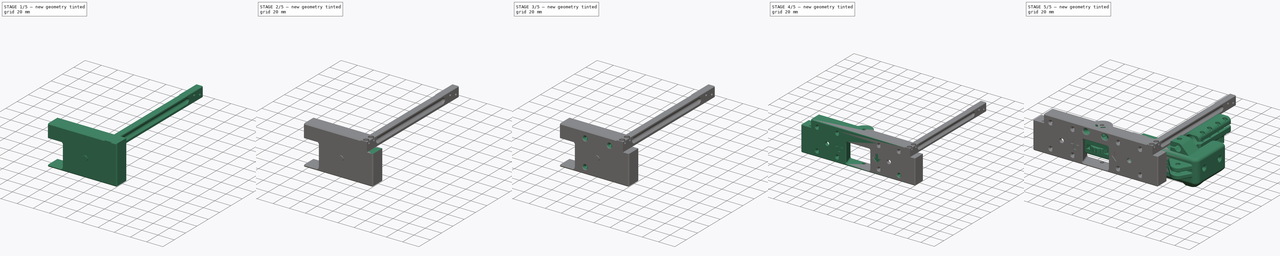
[diagram: build sequence overview — one tinted view per stage of 5, left to right]
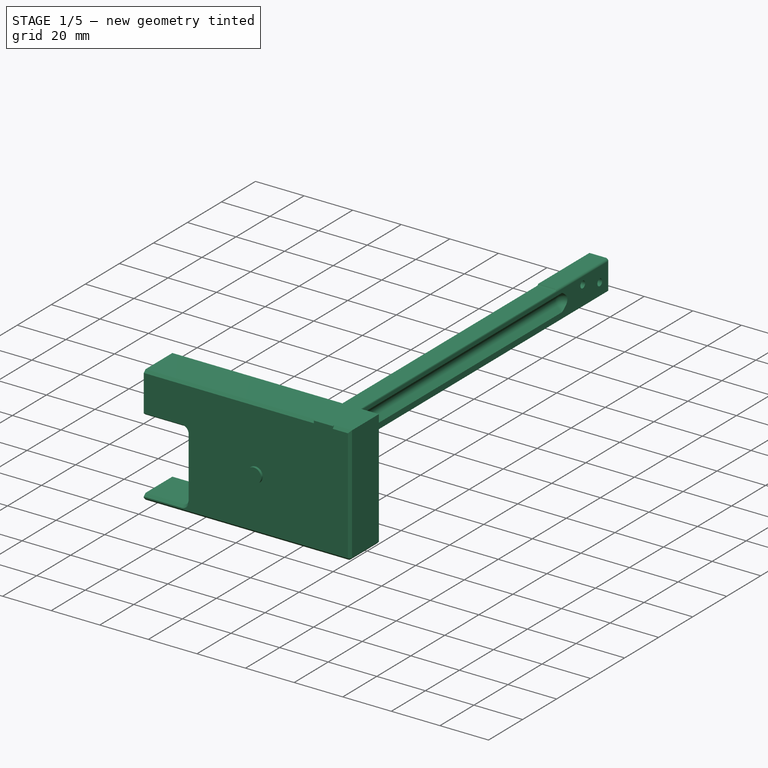
[diagram: stage 1 of 5 — iso view after this stage's code; geometry added in this stage tinted green]
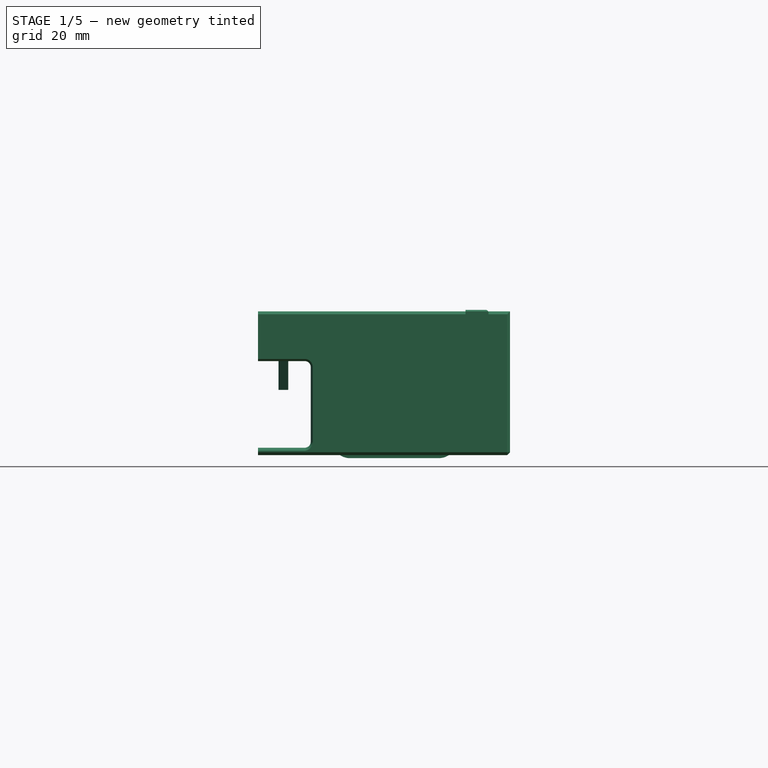
[diagram: stage 1 of 5 — front view after this stage's code; geometry added in this stage tinted green]
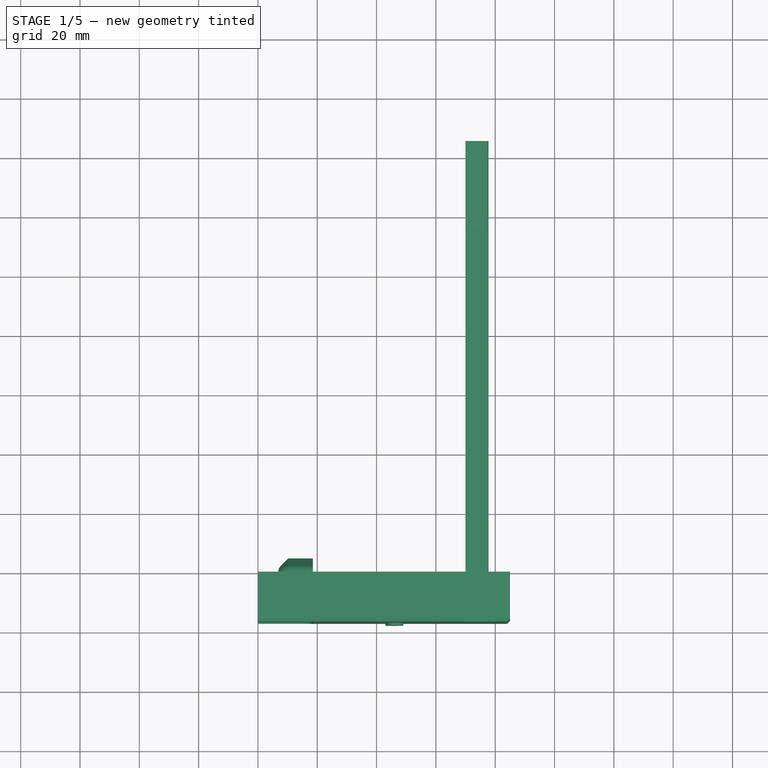
[diagram: stage 1 of 5 — top view after this stage's code; geometry added in this stage tinted green]
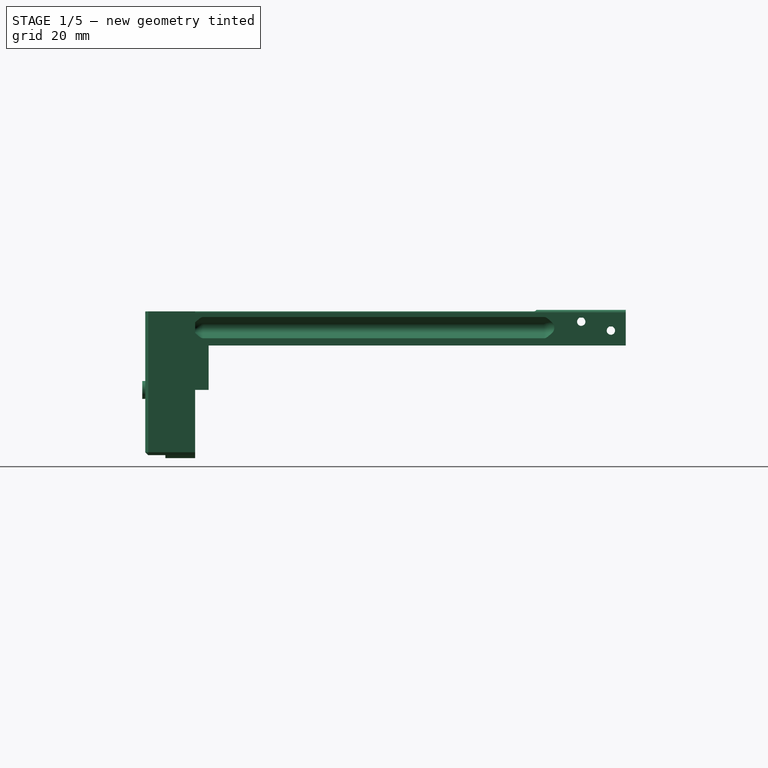
[diagram: stage 1 of 5 — right view after this stage's code; geometry added in this stage tinted green]
FCSTD DOCUMENT  (FreeCAD 0.16RUnknown)
Label: FrontCrane
License: All rights reserved
LicenseURL: http://en.wikipedia.org/wiki/All_rights_reserved
objects: Part::FeaturePython×35, Part::Cut×23, Sketcher::SketchObject×17, PartDesign::Pad×10, App::DocumentObjectGroup×6, Part::Fillet×4, Part::Chamfer×3, PartDesign::Pocket×3, PartDesign::Revolution×2, Part::Mirroring×2, Part::MultiFuse×2, Spreadsheet::Sheet×1, Part::Feature×1, PartDesign::Draft×1, Part::Sweep×1, Part::MultiCommon×1, Part::Cylinder×1, PartDesign::PolarPattern×1
note: 122 computed .brp shape members not serialized (recipe doc carries the construction recipe); baked Part::Feature solids carry a one-line shape summary decoded from their .brp

FEATURE [Sketcher::SketchObject] Sketch  label="Base"
  Placement = pos=(0,-0.2,0) rot=(1,0,0;1.5708rad)
  expr: Placement.Base.y = -pars.FrontClear
  sketch-geometry (4):
    g0: LineSegment StartX=0 StartY=26.5 StartZ=0 EndX=85 EndY=26.5 EndZ=0
    g1: LineSegment StartX=85 StartY=26.5 StartZ=0 EndX=85 EndY=-22 EndZ=0
    g2: LineSegment StartX=85 StartY=-22 StartZ=0 EndX=0 EndY=-22 EndZ=0
    g3: LineSegment StartX=0 StartY=-22 StartZ=0 EndX=0 EndY=26.5 EndZ=0
  constraints (12):
    c: Coincident(g0,g1)
    c: Coincident(g1,g2)
    c: Coincident(g2,g3)
    c: Coincident(g3,g0)
    c: Horizontal(g0)
    c: Horizontal(g2)
    c: Vertical(g1)
    c: Vertical(g3)
    c: PointOnObject(g0,g-2)
    c: DistanceY(g0) = 26.5
    c: DistanceY(g2) = -22
    c: DistanceX(g0) = 85
FEATURE [PartDesign::Pad] Pad  label="Base001"
  Length = 16.8
  Length2 = 100
  Placement = pos=(0,-0.2,0) rot=(1,0,0;1.5708rad)
  Sketch = -> Sketch
  Type = 0
  expr: Length = 17 - pars.FrontClear
FEATURE [Sketcher::SketchObject] Sketch001  label="CenterSlot"
  Placement = pos=(0,0,0) rot=(0.57735,0.57735,0.57735;2.0944rad)
  expr: Constraints[11] = Base001.Length + 10mm
  sketch-geometry (4):
    g0: LineSegment StartX=0 StartY=14 StartZ=0 EndX=-26.8 EndY=6.81896 EndZ=0
    g1: LineSegment StartX=-26.8 StartY=6.81896 StartZ=0 EndX=-26.8 EndY=-19.5 EndZ=0
    g2: LineSegment StartX=-26.8 StartY=-19.5 StartZ=0 EndX=0 EndY=-19.5 EndZ=0
    g3: LineSegment StartX=0 StartY=-19.5 StartZ=0 EndX=0 EndY=14 EndZ=0
  constraints (12):
    c: Coincident(g0,g1)
    c: Coincident(g1,g2)
    c: Coincident(g2,g3)
    c: Coincident(g0,g3)
    c: PointOnObject(g0,g-2)
    c: Horizontal(g2)
    c: Vertical(g3)
    c: Vertical(g1)
    c: DistanceY(g2) = -19.5
    c: DistanceY(g0) = 14
    c: Angle(g0) = -2.87979
    c: DistanceX(g2,g2) = 26.8
FEATURE [PartDesign::Pad] Pad001  label="CenterSlot001"
  Length = 23
  Length2 = 100
  Placement = pos=(0,0,0) rot=(0.57735,0.57735,0.57735;2.0944rad)
  Sketch = -> Sketch001
  Type = 0
FEATURE [PartDesign::Draft] Draft  label="CenterSlotDraft"
  Angle = 18
  Base = -> Pad001 [Face6]
  NeutralPlane = -> Pad001 [Face4]
  Placement = pos=(0,0,0) rot=(0.57735,0.57735,0.57735;2.0944rad)
FEATURE [Part::Fillet] Fillet  label="CSDFillet"
  Base = -> Draft
  Edges = 2 edges r=2: [Edge4,Edge10]
FEATURE [Part::Cut] Cut  label="CenterSlotCut"
  Base = -> Pad
  Tool = -> Fillet
FEATURE [Part::Chamfer] Chamfer  label="CenterSlotChamfer"
  Base = -> Cut
  Edges = 1 edges r=1: [Edge22]
FEATURE [Sketcher::SketchObject] Sketch011  label="RailSection"
  expr: Constraints[6] = pars.BallShapeTol + 3
  sketch-geometry (4):
    g0: Circle [constr] CenterX=10 CenterY=-2.5e-11 CenterZ=0 NormalX=0 NormalY=0 NormalZ=1 Radius=2.946
    g1: LineSegment StartX=10.2 StartY=4.36627 StartZ=0 EndX=5.83373 EndY=0 EndZ=0
    g2: LineSegment StartX=5.83373 StartY=0 StartZ=0 EndX=10.2 EndY=-4.36627 EndZ=0
    g3: LineSegment StartX=10.2 StartY=-4.36627 StartZ=0 EndX=10.2 EndY=4.36627 EndZ=0
  constraints (12):
    c: Coincident(g1,g2)
    c: Coincident(g2,g3)
    c: Coincident(g1,g3)
    c: Vertical(g3)
    c: Perpendicular(g2,g1)
    c: Angle(g1) = -2.35619
    c: Radius(g0) = 2.946
    c: Tangent(g1,g0)
    c: Tangent(g0,g2)
    c: DistanceX(g0) = 10
    c: DistanceX(g1) = 10.2
    c: PointOnObject(g1,g-1)
FEATURE [Sketcher::SketchObject] Sketch002  label="RailPath"
  Placement = pos=(0,0,0) rot=(1,0,0;1.5708rad)
  expr: Constraints[9] = pars.RailLen / 2
  sketch-geometry (3):
    g0: LineSegment StartX=6.5 StartY=0 StartZ=0 EndX=6.5 EndY=19 EndZ=0
    g1: ArcOfCircle CenterX=10.5 CenterY=19 CenterZ=0 NormalX=0 NormalY=0 NormalZ=1 Radius=4 StartAngle=1.5708 EndAngle=3.14159
    g2: LineSegment StartX=10.5 StartY=23 StartZ=0 EndX=18.5 EndY=23 EndZ=0
  constraints (11):
    c: Coincident(g1,g0)
    c: Tangent(g1,g0)
    c: Vertical(g0)
    c: PointOnObject(g0,g-1)
    c: Horizontal(g2)
    c: Coincident(g2,g1)
    c: Tangent(g2,g1)
    c: DistanceX(g1) = 10.5
    c: DistanceX(g2,g2) = 8
    c: DistanceY(g0,g0) = 19
    c: Radius(g1) = 4
FEATURE [Part::Sweep] Sweep  label="RailSweep"
  Frenet = false
  Sections = -> [Sketch011]
  Solid = true
  Spine = -> Sketch002 [Edge1,Edge2,Edge3]
  Transition = 1
FEATURE [Part::Fillet] Fillet003  label="RailFillet"
  Base = -> Sweep
  Edges = 1 edges r=2.6: [Edge17]
FEATURE [Sketcher::SketchObject] Sketch014  label="GuideReinf"
  Placement = pos=(0,0,0) rot=(1,0,0;1.5708rad)
  expr: Constraints[75] = 2 * pars.GuideClear + 20
  sketch-geometry (26):
    g0: LineSegment StartX=0 StartY=7.07107 StartZ=0 EndX=-7.07107 EndY=0 EndZ=0
    g1: LineSegment StartX=-7.07107 StartY=0 StartZ=0 EndX=1.5e-11 EndY=-7.07107 EndZ=0
    g2: LineSegment StartX=1.5e-11 StartY=-7.07107 StartZ=0 EndX=7.07107 EndY=4e-12 EndZ=0
    g3: LineSegment StartX=7.07107 StartY=4e-12 StartZ=0 EndX=0 EndY=7.07107 EndZ=0
    g4: LineSegment StartX=0 StartY=12.0208 StartZ=0 EndX=-9.97918 EndY=22 EndZ=0
    g5: LineSegment StartX=-9.97918 StartY=22 StartZ=0 EndX=9.97918 EndY=22 EndZ=0
    g6: LineSegment StartX=9.97918 StartY=22 StartZ=0 EndX=0 EndY=12.0208 EndZ=0
    g7: LineSegment StartX=-10.4 StartY=17.4711 StartZ=0 EndX=-2.47487 EndY=9.54594 EndZ=0
    g8: LineSegment StartX=-2.47487 StartY=9.54594 StartZ=0 EndX=-10.4 EndY=1.62082 EndZ=0
    g9: LineSegment StartX=-10.4 StartY=1.62082 StartZ=0 EndX=-10.4 EndY=17.4711 EndZ=0
    g10: LineSegment StartX=10.4 StartY=17.4711 StartZ=0 EndX=2.47487 EndY=9.54594 EndZ=0
    g11: LineSegment StartX=2.47487 StartY=9.54594 StartZ=0 EndX=10.4 EndY=1.62082 EndZ=0
    g12: LineSegment StartX=10.4 StartY=1.62082 StartZ=0 EndX=10.4 EndY=17.4711 EndZ=0
    g13: LineSegment StartX=10.4 StartY=-1.62082 StartZ=0 EndX=2.47487 EndY=-9.54594 EndZ=0
    g14: LineSegment StartX=2.47487 StartY=-9.54594 StartZ=0 EndX=10.4 EndY=-17.4711 EndZ=0
    g15: LineSegment StartX=10.4 StartY=-17.4711 StartZ=0 EndX=10.4 EndY=-1.62082 EndZ=0
    g16: LineSegment StartX=-10.4 StartY=-1.62082 StartZ=0 EndX=-2.47487 EndY=-9.54594 EndZ=0
    g17: LineSegment StartX=-2.47487 StartY=-9.54594 StartZ=0 EndX=-10.4 EndY=-17.4711 EndZ=0
    g18: LineSegment StartX=-10.4 StartY=-17.4711 StartZ=0 EndX=-10.4 EndY=-1.62082 EndZ=0
    g19: LineSegment StartX=-9.97918 StartY=-22 StartZ=0 EndX=0 EndY=-12.0208 EndZ=0
    g20: LineSegment StartX=0 StartY=-12.0208 StartZ=0 EndX=9.97918 EndY=-22 EndZ=0
    g21: LineSegment StartX=9.97918 StartY=-22 StartZ=0 EndX=-9.97918 EndY=-22 EndZ=0
    g22: LineSegment [constr] StartX=-10.4 StartY=22 StartZ=0 EndX=10.4 EndY=22 EndZ=0
    g23: LineSegment [constr] StartX=10.4 StartY=22 StartZ=0 EndX=10.4 EndY=-22 EndZ=0
    g24: LineSegment [constr] StartX=10.4 StartY=-22 StartZ=0 EndX=-10.4 EndY=-22 EndZ=0
    g25: LineSegment [constr] StartX=-10.4 StartY=-22 StartZ=0 EndX=-10.4 EndY=22 EndZ=0
  constraints (79):
    c: Coincident(g0,g1)
    c: Coincident(g1,g2)
    c: Coincident(g2,g3)
    c: Coincident(g3,g0)
    c: Coincident(g4,g5)
    c: Coincident(g5,g6)
    c: Coincident(g7,g8)
    c: Coincident(g8,g9)
    c: Coincident(g10,g11)
    c: Coincident(g11,g12)
    c: Coincident(g12,g10)
    c: Coincident(g13,g14)
    c: Coincident(g14,g15)
    c: Coincident(g15,g13)
    c: Coincident(g16,g17)
    c: Coincident(g17,g18)
    c: Coincident(g18,g16)
    c: Coincident(g19,g20)
    c: Coincident(g20,g21)
    c: Coincident(g21,g19)
    c: Coincident(g4,g6)
    c: Coincident(g9,g7)
    c: Vertical(g9)
    c: Vertical(g12)
    c: Vertical(g18)
    c: Vertical(g15)
    c: Horizontal(g5)
    c: Horizontal(g21)
    c: Parallel(g8,g0)
    c: Parallel(g0,g2)
    c: Parallel(g2,g13)
    c: Parallel(g13,g19)
    c: Parallel(g19,g17)
    c: Parallel(g17,g10)
    c: Parallel(g10,g6)
    c: Parallel(g4,g7)
    c: Parallel(g7,g11)
    c: Parallel(g11,g3)
    c: Parallel(g3,g1)
    c: Parallel(g1,g16)
    c: Parallel(g16,g20)
    c: Parallel(g20,g14)
    c: Perpendicular(g6,g4)
    c: Angle(g10) = -2.35619
    c: PointOnObject(g7,g3)
    c: PointOnObject(g10,g0)
    c: PointOnObject(g13,g1)
    c: PointOnObject(g16,g2)
    c: PointOnObject(g19,g16)
    c: PointOnObject(g19,g13)
    c: Equal(g3,g2)
    c: PointOnObject(g7,g6)
    c: PointOnObject(g4,g11)
    c: PointOnObject(g8,g18)
    c: PointOnObject(g11,g15)
    c: Coincident(g22,g23)
    c: Coincident(g23,g24)
    c: Coincident(g24,g25)
    c: Coincident(g25,g22)
    c: Horizontal(g22)
    c: Horizontal(g24)
    c: Vertical(g23)
    c: Vertical(g25)
    c: PointOnObject(g4,g22)
    c: PointOnObject(g7,g25)
    c: PointOnObject(g19,g24)
    c: PointOnObject(g14,g23)
    c: PointOnObject(g4,g-2)
    c: PointOnObject(g0,g-2)
    c: PointOnObject(g19,g-2)
    c: PointOnObject(g0,g-1)
    c: Equal(g9,g12)
    c: Equal(g21,g5)
    c: Equal(g8,g11)
    c: Equal(g8,g16)
    c: DistanceX(g22,g22) = 20.8
    c: DistanceY(g25,g25) = 44
    c: Distance(g3) = 10
    c: Distance(g4,g10) = 3.5
FEATURE [PartDesign::Pad] Pad003  label="GuideReinf001"
  Length = 1
  Length2 = 100
  Placement = pos=(0,0,0) rot=(1,0,0;1.5708rad)
  Sketch = -> Sketch014
  Type = 0
FEATURE [Part::FeaturePython] Clone010  label="Clone of GuideReinf001"  # Draft clone (typed FeaturePython)
  Objects = -> [Pad003]
  Placement = pos=(46,-11.4,2) rot=(1,0,0;1.5708rad)
  Scale = (1,1,1)
  expr: Placement.Base.x = pars.GuideSep
  expr: Placement.Base.y = -1 * (pars.GuideClear + 11)
FEATURE [Part::Chamfer] Chamfer001  label="NiceFrontChamfer"
  Base = -> Chamfer
  Edges = 4 edges r=1: [Edge7,Edge9,Edge11,Edge30]
FEATURE [Sketcher::SketchObject] Sketch012  label="GuideSlot"
  Placement = pos=(0,-0.2,0) rot=(0,0.707107,0.707107;3.14159rad)
  Support = -> Chamfer001 [Face7]
  expr: Constraints[10] = -pars.GuideSep
  expr: Constraints[11] = 2 * pars.GuideClear + 20
  sketch-geometry (5):
    g0: LineSegment StartX=-56.4 StartY=24 StartZ=0 EndX=-35.6 EndY=24 EndZ=0
    g1: LineSegment StartX=-35.6 StartY=24 StartZ=0 EndX=-35.6 EndY=-30 EndZ=0
    g2: LineSegment StartX=-35.6 StartY=-30 StartZ=0 EndX=-56.4 EndY=-30 EndZ=0
    g3: LineSegment StartX=-56.4 StartY=-30 StartZ=0 EndX=-56.4 EndY=24 EndZ=0
    g4: GeomPoint [constr] X=-46 Y=24 Z=0
  constraints (13):
    c: Coincident(g0,g1)
    c: Coincident(g1,g2)
    c: Coincident(g2,g3)
    c: Coincident(g3,g0)
    c: Horizontal(g0)
    c: Horizontal(g2)
    c: Vertical(g1)
    c: Vertical(g3)
    c: Symmetric(g0,g0,g4)
    c: DistanceY(g4) = 24
    c: DistanceX(g4) = -46
    c: DistanceX(g2,g2) = 20.8
    c: DistanceY(g1) = -30
FEATURE [PartDesign::Pocket] Pocket  label="GuideSlot001"
  Length = 11.2
  Sketch = -> Sketch012
  Type = 0
  expr: Length = (11 + pars.GuideClear - pars.FrontClear) * 1mm
FEATURE [Part::Cut] Cut001  label="GuideReinfCut"
  Base = -> Pocket
  Tool = -> Clone010
FEATURE [Part::FeaturePython] refine001  label="refine_GuideReinfCut"  # WARN: FeaturePython — macro-defined, semantics opaque (R4)
  Base = -> Cut001
FEATURE [Sketcher::SketchObject] Sketch015  label="RailCuts"
  Placement = pos=(0,-0.2,0) rot=(1,0,0;1.5708rad)
  expr: Constraints[18] = 2 * pars.GBoltSep
  expr: Placement.Base.y = -pars.FrontClear
  expr: Constraints[17] = pars.GuideSep
  sketch-geometry (9):
    g0: LineSegment StartX=31 StartY=24 StartZ=0 EndX=61 EndY=24 EndZ=0
    g1: LineSegment StartX=67 StartY=18 StartZ=0 EndX=67 EndY=-17 EndZ=0
    g2: LineSegment StartX=61 StartY=-23 StartZ=0 EndX=31 EndY=-23 EndZ=0
    g3: LineSegment StartX=25 StartY=-17 StartZ=0 EndX=25 EndY=18 EndZ=0
    g4: ArcOfCircle CenterX=31 CenterY=18 CenterZ=0 NormalX=0 NormalY=0 NormalZ=1 Radius=6 StartAngle=1.5708 EndAngle=3.14159
    g5: ArcOfCircle CenterX=61 CenterY=18 CenterZ=0 NormalX=0 NormalY=0 NormalZ=1 Radius=6 StartAngle=0 EndAngle=1.5708
    g6: ArcOfCircle CenterX=61 CenterY=-17 CenterZ=0 NormalX=0 NormalY=0 NormalZ=1 Radius=6 StartAngle=4.71239 EndAngle=6.28319
    g7: ArcOfCircle CenterX=31 CenterY=-17 CenterZ=0 NormalX=0 NormalY=0 NormalZ=1 Radius=6 StartAngle=3.14159 EndAngle=4.71239
    g8: GeomPoint [constr] X=46 Y=24 Z=0
  constraints (21):
    c: Horizontal(g0)
    c: Horizontal(g2)
    c: Vertical(g1)
    c: Vertical(g3)
    c: Tangent(g3,g4) = 1.5708
    c: Tangent(g0,g4) = 1.5708
    c: Tangent(g0,g5) = 1.5708
    c: Tangent(g1,g5) = 1.5708
    c: Tangent(g1,g6) = 1.5708
    c: Tangent(g2,g6) = 1.5708
    c: Tangent(g3,g7) = 1.5708
    c: Tangent(g2,g7) = 1.5708
    c: Equal(g7,g6)
    c: Equal(g6,g5)
    c: Equal(g5,g4)
    c: DistanceY(g5) = 18
    c: Symmetric(g0,g0,g8)
    c: DistanceX(g8) = 46
    c: DistanceX(g4,g5) = 30
    c: DistanceY(g0) = 24
    c: DistanceY(g2) = -23
FEATURE [PartDesign::Pad] Pad004  label="RailCuts001"
  Length = 10
  Length2 = 100
  Placement = pos=(0,-0.2,0) rot=(1,0,0;1.5708rad)
  Sketch = -> Sketch015
  Type = 0
  expr: Length = 10mm
FEATURE [Part::FeaturePython] Clone018  label="Clone of RailCuts001"  # Draft clone (typed FeaturePython)
  Objects = -> [Pad004]
  Placement = pos=(0,-0.2,0) rot=(1,0,0;1.5708rad)
  Scale = (1,1,1)
FEATURE [Part::Cylinder] Cylinder  label="AllenHole"
  Angle = 360
  Height = 10
  Placement = pos=(46,-8,0) rot=(1,0,0;1.5708rad)
  Radius = 3
FEATURE [Part::FeaturePython] DrawerGuide_01  label="DrawerGuide"  # a2plus imported part (geometry in sourceFile) (typed FeaturePython)
  Placement = pos=(70,-17,15) rot=(0,0,1;0rad)
  fixedPosition = false
  sourceFile = ./DrawerGuide.fcstd
  timeLastImport = 1.52147e+09
  updateColors = true
FEATURE [App::DocumentObjectGroup] Group  label="Reference"
  Group = -> [Fillet002,FocusWheelHolder_01,FrontCorner_01,FrontGuide_01,RYCarriage_step1_01,FocusWheel_01,DrawerGuide_01]
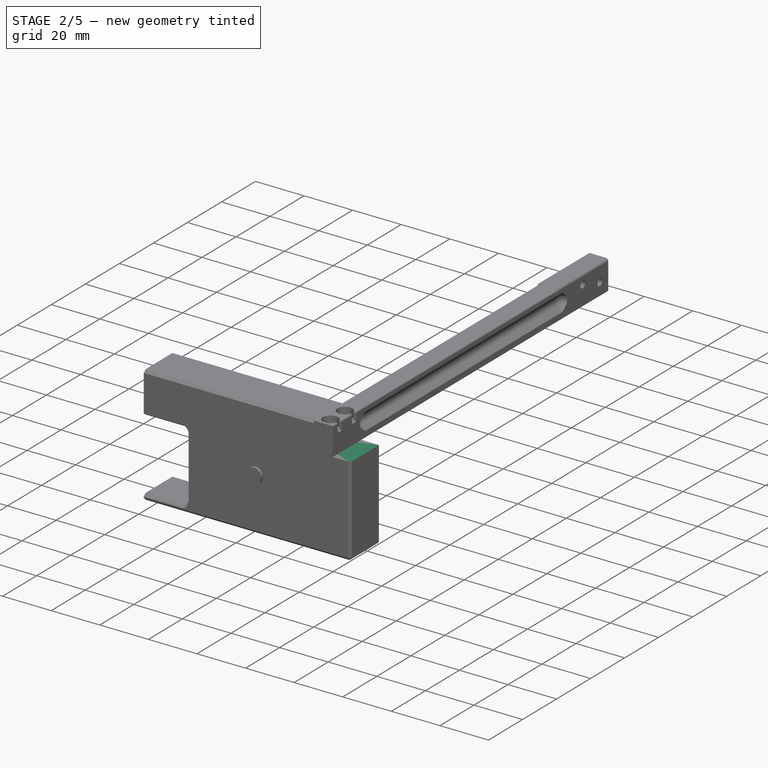
[diagram: stage 2 of 5 — iso view after this stage's code; geometry added in this stage tinted green]
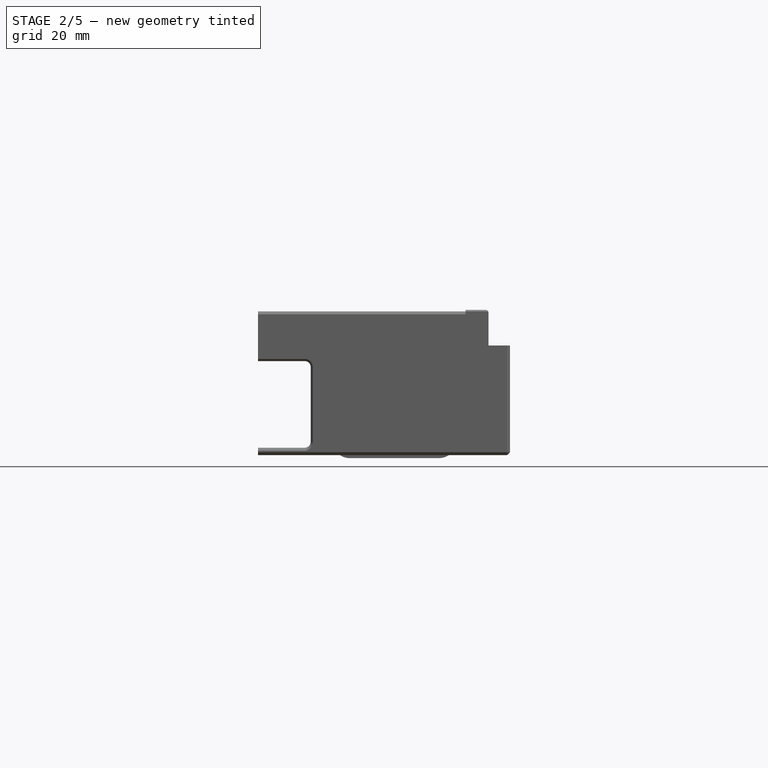
[diagram: stage 2 of 5 — front view after this stage's code; geometry added in this stage tinted green]
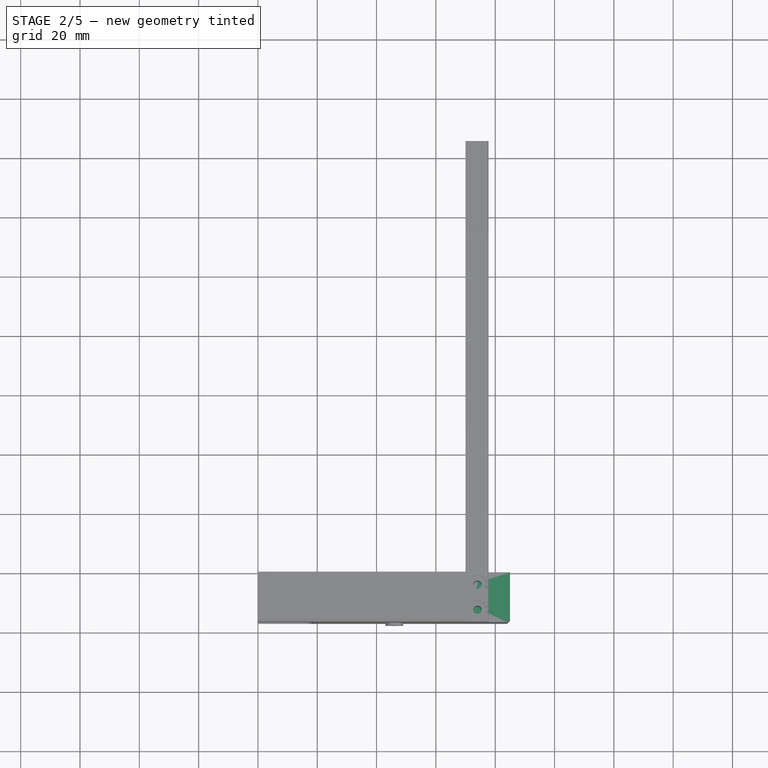
[diagram: stage 2 of 5 — top view after this stage's code; geometry added in this stage tinted green]
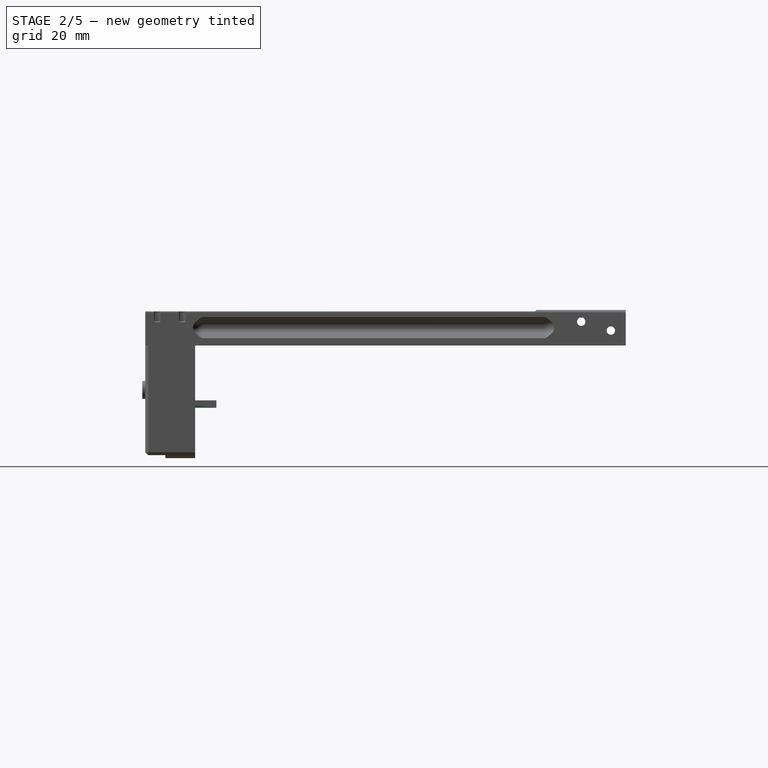
[diagram: stage 2 of 5 — right view after this stage's code; geometry added in this stage tinted green]
FEATURE [Part::Mirroring] Part__Mirroring  label="RailFillet (Mirror #1)"
  Base = (0,0,0)
  Normal = (0,0,1)
  Source = -> Fillet003
FEATURE [Part::MultiFuse] Fusion  label="GuideMirror"
  Shapes = -> [Part__Mirroring,Fillet003]
FEATURE [Part::FeaturePython] refine  label="Guide"  # WARN: FeaturePython — macro-defined, semantics opaque (R4)
  Base = -> Fusion
FEATURE [App::DocumentObjectGroup] Group003  label="Rail_src"
  Group = -> [Sketch011,Sketch002,Sweep,Fusion,refine]
FEATURE [Part::FeaturePython] Clone004  label="Clone of Guide"  # Draft clone (typed FeaturePython)
  Objects = -> [refine]
  Placement = pos=(26.33,-5,1) rot=(0,0,1;0rad)
  Scale = (1,1,1)
  expr: Placement.Base.x = pars.GuideSep - 20 + pars.GuideTight
FEATURE [Part::FeaturePython] Clone005  label="Clone of Guide001"  # Draft clone (typed FeaturePython)
  Objects = -> [refine]
  Placement = pos=(65.67,-5,1) rot=(0,0,1;3.14159rad)
  Scale = (1,1,1)
  expr: Placement.Base.x = pars.GuideSep + 20 - pars.GuideTight
FEATURE [Part::Cut] Cut002
  Base = -> refine001
  Tool = -> Clone004
FEATURE [Part::Cut] Cut003  label="GuideCuts"
  Base = -> Cut002
  Tool = -> Clone005
FEATURE [Sketcher::SketchObject] Sketch016  label="DIN934M3Slot"
  expr: Constraints[13] = pars.NutWidthClearmm + 5.5
  sketch-geometry (6):
    g0: LineSegment StartX=-2.8 StartY=20 StartZ=0 EndX=-2.8 EndY=-1.61658 EndZ=0
    g1: LineSegment StartX=-2.8 StartY=-1.61658 StartZ=0 EndX=0 EndY=-3.23316 EndZ=0
    g2: LineSegment StartX=0 StartY=-3.23316 StartZ=0 EndX=2.8 EndY=-1.61658 EndZ=0
    g3: LineSegment StartX=2.8 StartY=-1.61658 StartZ=0 EndX=2.8 EndY=20 EndZ=0
    g4: LineSegment StartX=2.8 StartY=20 StartZ=0 EndX=-2.8 EndY=20 EndZ=0
    g5: Circle [constr] CenterX=0 CenterY=0 CenterZ=0 NormalX=0 NormalY=0 NormalZ=1 Radius=3.23316
  constraints (17):
    c: Coincident(g0,g1)
    c: Coincident(g1,g2)
    c: Coincident(g2,g3)
    c: Coincident(g3,g4)
    c: Coincident(g0,g4)
    c: Horizontal(g4)
    c: Vertical(g0)
    c: Vertical(g3)
    c: Coincident(g5,g-1)
    c: PointOnObject(g0,g5)
    c: PointOnObject(g2,g5)
    c: PointOnObject(g1,g5)
    c: PointOnObject(g1,g-2)
    c: DistanceX(g4,g4) = 5.6
    c: Symmetric(g0,g3,g-2)
    c: Angle(g2,g1) = 2.0944
    c: DistanceY(g0) = 20
FEATURE [PartDesign::Pad] Pad005  label="DIN934M3Slot001"
  Length = 2.5
  Length2 = 100
  Sketch = -> Sketch016
  Type = 0
  expr: Length = pars.NutThickClearmm + 2.4
FEATURE [Sketcher::SketchObject] Sketch017  label="DIN912M3PrintThread"
  expr: Constraints[11] = -pars.CilTight + 1.5
  sketch-geometry (4):
    g0: ArcOfCircle CenterX=0 CenterY=0 CenterZ=0 NormalX=0 NormalY=0 NormalZ=1 Radius=1.4 StartAngle=2.35619 EndAngle=7.06858
    g1: LineSegment StartX=-0.989949 StartY=0.98995 StartZ=0 EndX=-0.579899 EndY=1.4 EndZ=0
    g2: LineSegment StartX=-0.579899 StartY=1.4 StartZ=0 EndX=0.579899 EndY=1.4 EndZ=0
    g3: LineSegment StartX=0.579899 StartY=1.4 StartZ=0 EndX=0.989954 EndY=0.989945 EndZ=0
  constraints (12):
    c: Coincident(g1,g2)
    c: Coincident(g2,g3)
    c: Coincident(g1,g0)
    c: Coincident(g3,g0)
    c: Coincident(g0,g-1)
    c: Horizontal(g2)
    c: Perpendicular(g1,g3)
    c: Tangent(g0,g1)
    c: Tangent(g2,g0)
    c: Tangent(g3,g0)
    c: Angle(g1,g2) = 2.35619
    c: Radius(g0) = 1.4
FEATURE [PartDesign::Pad] Pad006  label="DIN912M3PrintThread001"
  Length = 40
  Length2 = 100
  Reversed = true
  Sketch = -> Sketch017
  Type = 0
FEATURE [Sketcher::SketchObject] Sketch018  label="DIN912M3PrintHead"
  Support = -> Pad006 [Face5]
  expr: Constraints[11] = pars.CilLoose + 3
  sketch-geometry (4):
    g0: ArcOfCircle CenterX=0 CenterY=0 CenterZ=0 NormalX=0 NormalY=0 NormalZ=1 Radius=3.1 StartAngle=2.35619 EndAngle=7.06859
    g1: LineSegment StartX=-2.19202 StartY=2.19204 StartZ=0 EndX=-1.28406 EndY=3.1 EndZ=0
    g2: LineSegment StartX=-1.28406 StartY=3.1 StartZ=0 EndX=1.28406 EndY=3.1 EndZ=0
    g3: LineSegment StartX=1.28406 StartY=3.1 StartZ=0 EndX=2.19203 EndY=2.19204 EndZ=0
  constraints (12):
    c: Coincident(g1,g2)
    c: Coincident(g2,g3)
    c: Coincident(g1,g0)
    c: Coincident(g3,g0)
    c: Coincident(g0,g-1)
    c: Horizontal(g2)
    c: Perpendicular(g1,g3)
    c: Tangent(g0,g1)
    c: Tangent(g2,g0)
    c: Tangent(g3,g0)
    c: Angle(g1,g2) = 2.35619
    c: Radius(g0) = 3.1
FEATURE [PartDesign::Pad] Pad007  label="DIN912M3PrintHead001"
  Length = 10
  Length2 = 100
  Sketch = -> Sketch018
  Type = 0
FEATURE [Part::FeaturePython] Clone011  label="Clone of DIN912M3PrintHead001"  # Draft clone (typed FeaturePython)
  Objects = -> [Pad007]
  Placement = pos=(74,-4.5,23) rot=(0,0,1;0rad)
  Scale = (1,1,1)
FEATURE [Part::FeaturePython] Clone012  label="Clone of DIN912M3PrintHead002"  # Draft clone (typed FeaturePython)
  Objects = -> [Pad007]
  Placement = pos=(74,-13,23) rot=(0,0,1;0rad)
  Scale = (1,1,1)
FEATURE [Part::FeaturePython] Clone013  label="Clone of DIN934M3Slot001"  # Draft clone (typed FeaturePython)
  Objects = -> [Pad005]
  Placement = pos=(74,-4.5,3) rot=(0,0,1;0rad)
  Scale = (1,1,1)
FEATURE [Part::FeaturePython] Clone014  label="Clone of DIN934M3Slot002"  # Draft clone (typed FeaturePython)
  Objects = -> [Pad005]
  Placement = pos=(74,-13,-6) rot=(0,0,1;0rad)
  Scale = (1,1,1)
FEATURE [Sketcher::SketchObject] Sketch019  label="DrawerSlideSpace"
  Placement = pos=(0,-17,0) rot=(1,0,0;1.5708rad)
  Support = -> Cut003 [Face2]
  sketch-geometry (4):
    g0: LineSegment StartX=70 StartY=29 StartZ=0 EndX=86 EndY=29 EndZ=0
    g1: LineSegment StartX=86 StartY=29 StartZ=0 EndX=86 EndY=15 EndZ=0
    g2: LineSegment StartX=86 StartY=15 StartZ=0 EndX=70 EndY=15 EndZ=0
    g3: LineSegment StartX=70 StartY=15 StartZ=0 EndX=70 EndY=29 EndZ=0
  constraints (12):
    c: Coincident(g0,g1)
    c: Coincident(g1,g2)
    c: Coincident(g2,g3)
    c: Coincident(g3,g0)
    c: Horizontal(g0)
    c: Horizontal(g2)
    c: Vertical(g1)
    c: Vertical(g3)
    c: DistanceX(g0) = 86
    c: DistanceY(g1) = 15
    c: DistanceX(g0) = 70
    c: DistanceY(g0) = 29
FEATURE [PartDesign::Pocket] Pocket001  label="DrawerSlideSpace001"
  Length = 5
  Sketch = -> Sketch019
  Type = 1
FEATURE [Part::Cut] Cut004
  Base = -> Pocket001
  Tool = -> Clone011
FEATURE [Part::Cut] Cut005
  Base = -> Cut004
  Tool = -> Clone012
FEATURE [Part::Cut] Cut006
  Base = -> Cut005
  Tool = -> Clone013
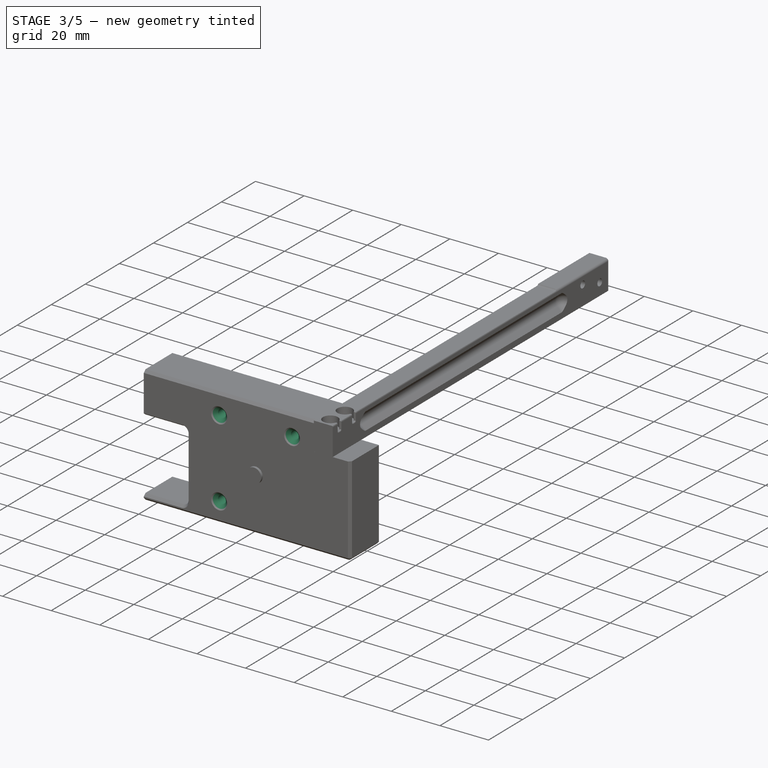
[diagram: stage 3 of 5 — iso view after this stage's code; geometry added in this stage tinted green]
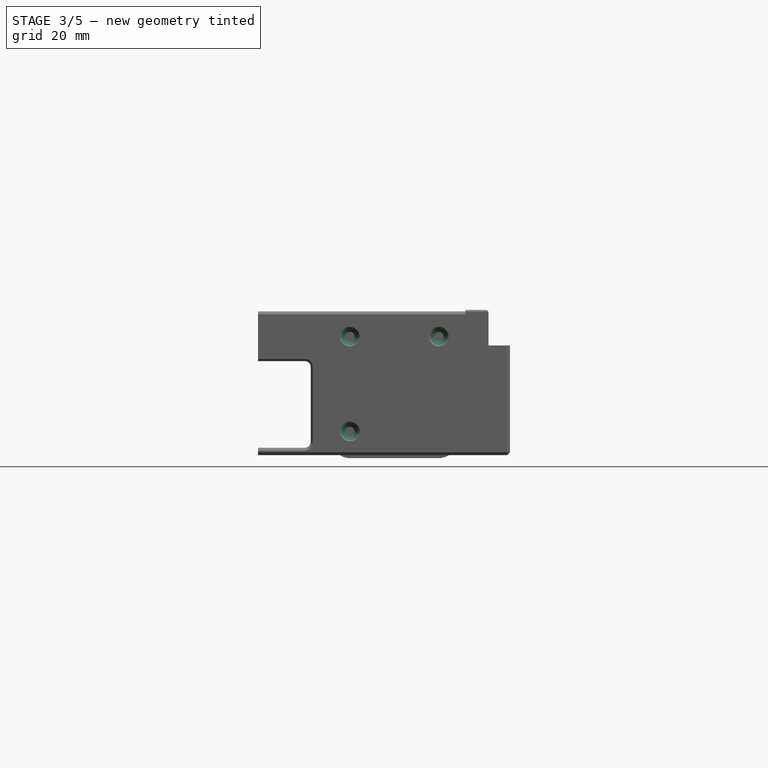
[diagram: stage 3 of 5 — front view after this stage's code; geometry added in this stage tinted green]
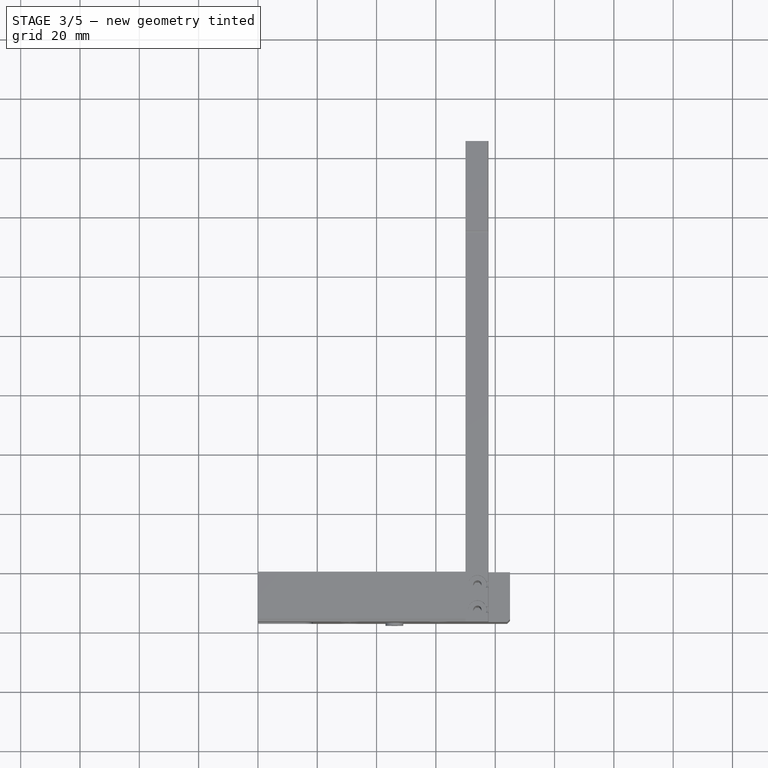
[diagram: stage 3 of 5 — top view after this stage's code; geometry added in this stage tinted green]
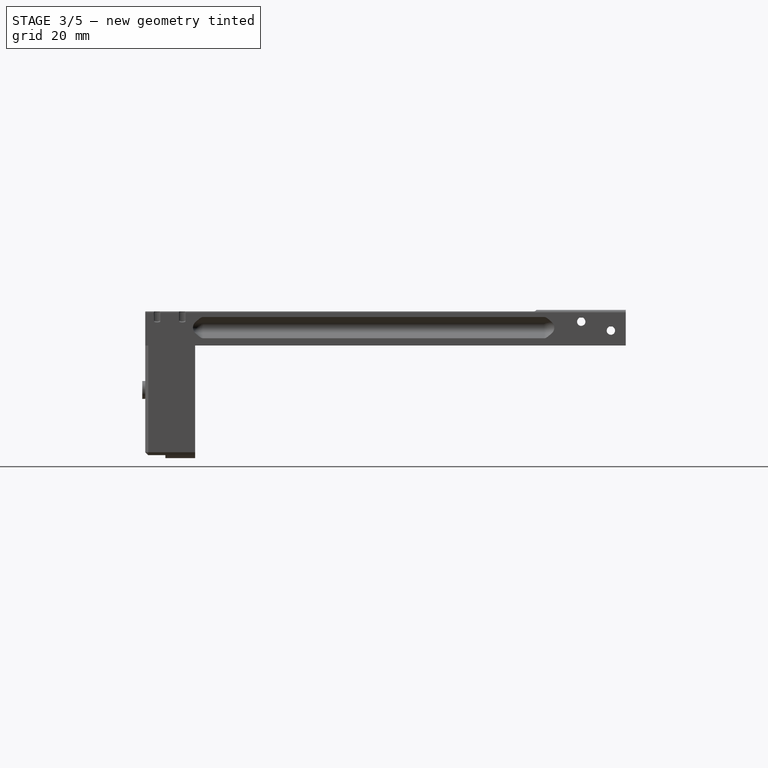
[diagram: stage 3 of 5 — right view after this stage's code; geometry added in this stage tinted green]
FEATURE [Sketcher::SketchObject] Sketch010  label="DIN7991M3Bolt"
  expr: Constraints[11] = pars.CilLoose + 1.5
  sketch-geometry (5):
    g0: LineSegment StartX=0 StartY=0 StartZ=0 EndX=3.3 EndY=0 EndZ=0
    g1: LineSegment StartX=3.3 StartY=0 StartZ=0 EndX=1.6 EndY=-1.7 EndZ=0
    g2: LineSegment StartX=1.6 StartY=-1.7 StartZ=0 EndX=1.6 EndY=-40 EndZ=0
    g3: LineSegment StartX=1.6 StartY=-40 StartZ=0 EndX=0 EndY=-40 EndZ=0
    g4: LineSegment StartX=0 StartY=-40 StartZ=0 EndX=0 EndY=0 EndZ=0
  constraints (14):
    c: Coincident(g0,g1)
    c: Coincident(g1,g2)
    c: Coincident(g2,g3)
    c: Coincident(g3,g4)
    c: Coincident(g4,g0)
    c: Vertical(g4)
    c: Vertical(g2)
    c: Horizontal(g0)
    c: Horizontal(g3)
    c: Coincident(g0,g-1)
    c: Angle(g0,g1) = 0.785398
    c: DistanceX(g3,g3) = 1.6
    c: DistanceY(g4,g4) = 40
    c: DistanceY(g1,g0) = 1.7
FEATURE [PartDesign::Revolution] Revolution001  label="DIN7991M3Bolt001"
  Angle = 360
  Axis = (0,1,0)
  Base = (0,0,0)
  ReferenceAxis = -> Sketch010 [V_Axis]
  Reversed = true
  Sketch = -> Sketch010
FEATURE [Part::FeaturePython] Clone  label="Clone of DIN7991M4Bolt001"  # Draft clone (typed FeaturePython)
  Objects = -> [Revolution001]
  Placement = pos=(31,-17,18) rot=(0,0,1;3.14159rad)
  Scale = (1,1,1)
  expr: Placement.Base.y = -1 * (pars.FrontClear * 1mm + Base001.Length)
  expr: Placement.Base.x = pars.GuideSep - pars.GBoltSep
FEATURE [Part::FeaturePython] Clone001  label="Clone of DIN7991M3Bolt001"  # Draft clone (typed FeaturePython)
  Objects = -> [Revolution001]
  Placement = pos=(61,-17,18) rot=(0,0,1;3.14159rad)
  Scale = (1,1,1)
  expr: Placement.Base.y = -1 * (pars.FrontClear * 1mm + Base001.Length)
  expr: Placement.Base.x = pars.GuideSep + pars.GBoltSep
FEATURE [Part::FeaturePython] Clone002  label="Clone of DIN7991M3Bolt002"  # Draft clone (typed FeaturePython)
  Objects = -> [Revolution001]
  Placement = pos=(31,-17,-14) rot=(0,0,1;3.14159rad)
  Scale = (1,1,1)
  expr: Placement.Base.y = -1 * (pars.FrontClear * 1mm + Base001.Length)
  expr: Placement.Base.x = pars.GuideSep - pars.GBoltSep
FEATURE [Sketcher::SketchObject] Sketch013  label="DIN934M3Nut"
  expr: Constraints[19] = pars.NutWidthClearmm + 5.5
  sketch-geometry (7):
    g0: LineSegment StartX=2.8 StartY=-1.61658 StartZ=0 EndX=2.8 EndY=1.61658 EndZ=0
    g1: LineSegment StartX=2.8 StartY=1.61658 StartZ=0 EndX=0 EndY=3.23316 EndZ=0
    g2: LineSegment StartX=0 StartY=3.23316 StartZ=0 EndX=-2.8 EndY=1.61658 EndZ=0
    g3: LineSegment StartX=-2.8 StartY=1.61658 StartZ=0 EndX=-2.8 EndY=-1.61658 EndZ=0
    g4: LineSegment StartX=-2.8 StartY=-1.61658 StartZ=0 EndX=0 EndY=-3.23316 EndZ=0
    g5: LineSegment StartX=0 StartY=-3.23316 StartZ=0 EndX=2.8 EndY=-1.61658 EndZ=0
    g6: Circle [constr] CenterX=0 CenterY=0 CenterZ=0 NormalX=0 NormalY=0 NormalZ=1 Radius=3.23316
  constraints (16):
    c: Coincident(g0,g1)
    c: Coincident(g1,g2)
    c: Coincident(g2,g3)
    c: Coincident(g3,g4)
    c: Coincident(g4,g5)
    c: Coincident(g5,g0)
    c: Equal(g0, g1-g5) x5
    c: PointOnObject(g0,g6)
    c: PointOnObject(g1,g6)
    c: PointOnObject(g2,g6)
    c: PointOnObject(g3,g6)
    c: PointOnObject(g4,g6)
    c: PointOnObject(g5,g6)
    c: Coincident(g-1,g6)
    c: Vertical(g3)
    c: DistanceX(g2,g0) = 5.6
FEATURE [PartDesign::Pad] Pad002  label="DIN934M3Nut001"
  Length = 2.5
  Length2 = 100
  Sketch = -> Sketch013
  Type = 0
  expr: Length = pars.NutThickClearmm + 2.4
FEATURE [Part::FeaturePython] Clone006  label="Clone of DIN934M3Nut001"  # Draft clone (typed FeaturePython)
  Objects = -> [Pad002]
  Placement = pos=(31,-0.2,18) rot=(1,0,0;1.5708rad)
  Scale = (1,1,1)
  expr: Placement.Base.x = pars.GuideSep - pars.GBoltSep
  expr: Placement.Base.y = -pars.FrontClear
FEATURE [Part::FeaturePython] Clone007  label="Clone of DIN934M3Nut002"  # Draft clone (typed FeaturePython)
  Objects = -> [Pad002]
  Placement = pos=(61,-0.2,18) rot=(1,0,0;1.5708rad)
  Scale = (1,1,1)
  expr: Placement.Base.x = pars.GuideSep + pars.GBoltSep
  expr: Placement.Base.y = -pars.FrontClear
FEATURE [Part::FeaturePython] Clone008  label="Clone of DIN934M3Nut003"  # Draft clone (typed FeaturePython)
  Objects = -> [Pad002]
  Placement = pos=(31,-0.2,-14) rot=(1,0,0;1.5708rad)
  Scale = (1,1,1)
  expr: Placement.Base.x = pars.GuideSep - pars.GBoltSep
  expr: Placement.Base.y = -pars.FrontClear
FEATURE [Part::FeaturePython] Clone009  label="Clone of DIN934M3Nut004"  # Draft clone (typed FeaturePython)
  Objects = -> [Pad002]
  Placement = pos=(61,-0.2,-14) rot=(1,0,0;1.5708rad)
  Scale = (1,1,1)
  expr: Placement.Base.x = pars.GuideSep + pars.GBoltSep
  expr: Placement.Base.y = -pars.FrontClear
FEATURE [Part::Cut] Cut007  label="DrawerRailBolts"
  Base = -> Cut006
  Tool = -> Clone014
FEATURE [Part::Cut] Cut008
  Base = -> Cut007
  Tool = -> Clone006
FEATURE [Part::Cut] Cut009
  Base = -> Cut008
  Tool = -> Clone007
FEATURE [Part::Cut] Cut010
  Base = -> Cut009
  Tool = -> Clone008
FEATURE [Part::Cut] Cut011  label="GuideNutCuts"
  Base = -> Cut010
  Tool = -> Clone009
FEATURE [Part::Cut] Cut012
  Base = -> Cut011
  Tool = -> Clone001
FEATURE [Part::Cut] Cut013
  Base = -> Cut012
  Tool = -> Clone
FEATURE [Part::Cut] Cut014
  Base = -> Cut013
  Tool = -> Clone002
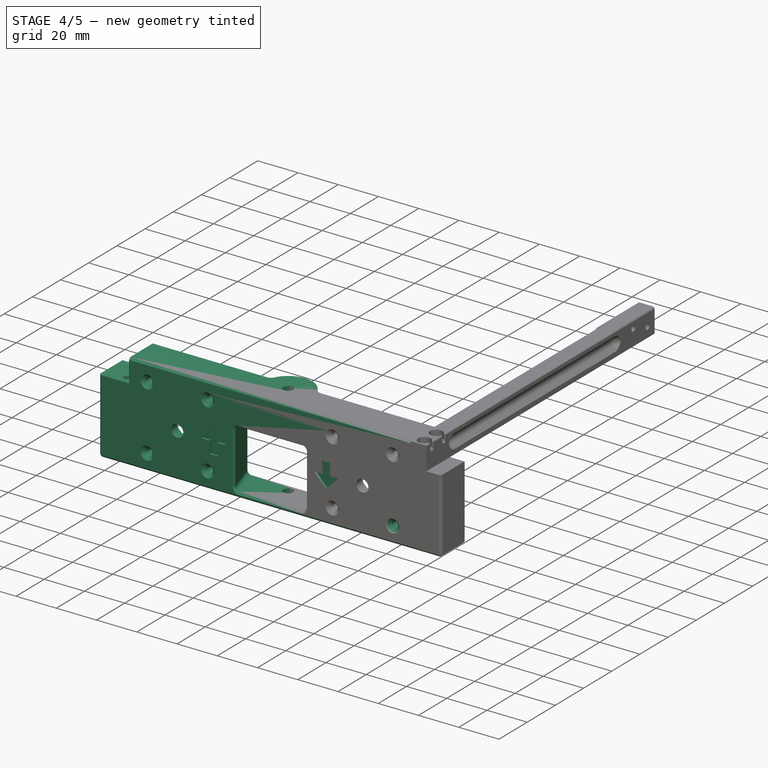
[diagram: stage 4 of 5 — iso view after this stage's code; geometry added in this stage tinted green]
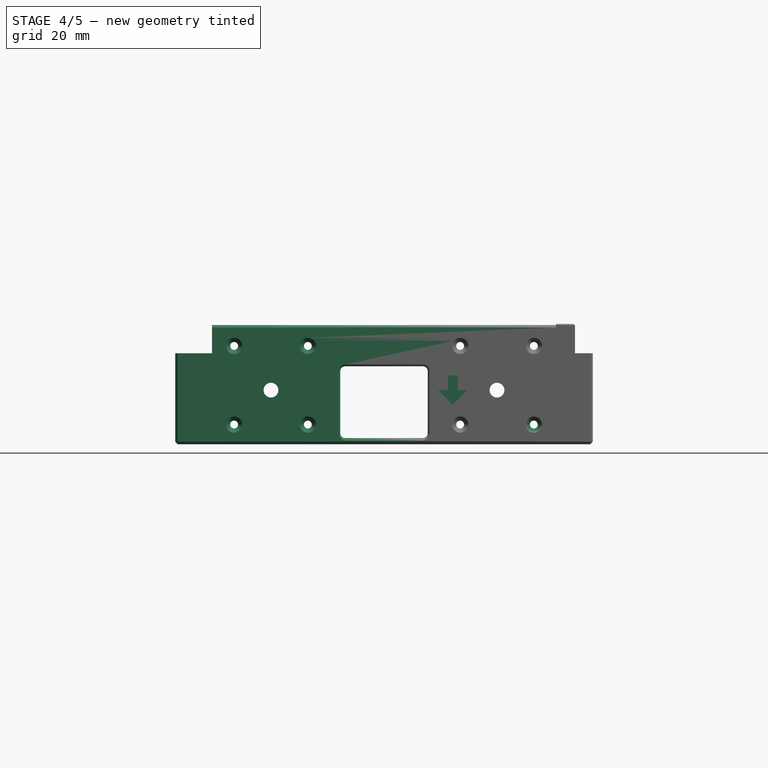
[diagram: stage 4 of 5 — front view after this stage's code; geometry added in this stage tinted green]
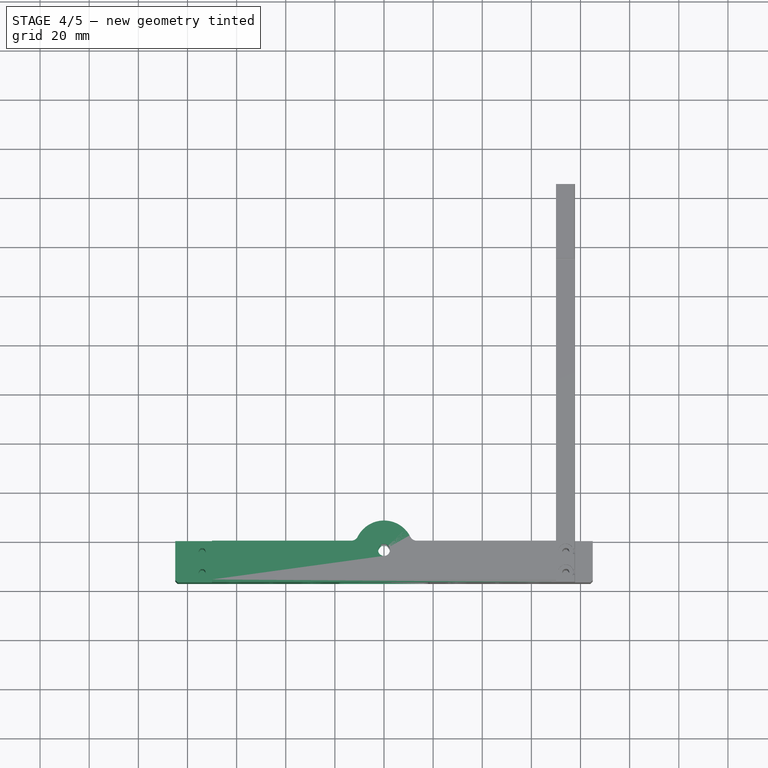
[diagram: stage 4 of 5 — top view after this stage's code; geometry added in this stage tinted green]
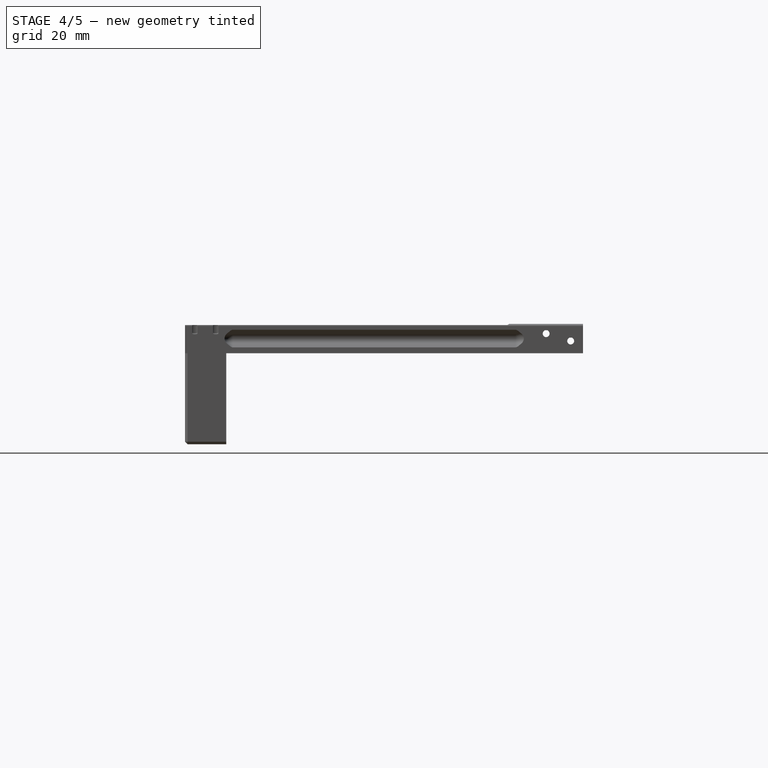
[diagram: stage 4 of 5 — right view after this stage's code; geometry added in this stage tinted green]
FEATURE [Part::FeaturePython] Clone003  label="Clone of DIN7991M3Bolt003"  # Draft clone (typed FeaturePython)
  Objects = -> [Revolution001]
  Placement = pos=(61,-17,-14) rot=(0,0,1;3.14159rad)
  Scale = (1,1,1)
  expr: Placement.Base.y = -1 * (pars.FrontClear * 1mm + Base001.Length)
  expr: Placement.Base.x = pars.GuideSep + pars.GBoltSep
FEATURE [Sketcher::SketchObject] Sketch020  label="PrintM5ThrRod"
  expr: Constraints[11] = -pars.CilTight + 2.5
  sketch-geometry (4):
    g0: ArcOfCircle CenterX=0 CenterY=0 CenterZ=0 NormalX=0 NormalY=0 NormalZ=1 Radius=2.4 StartAngle=2.3562 EndAngle=7.06858
    g1: LineSegment StartX=-1.69707 StartY=1.69704 StartZ=0 EndX=-0.994113 EndY=2.4 EndZ=0
    g2: LineSegment StartX=-0.994113 StartY=2.4 StartZ=0 EndX=0.994113 EndY=2.4 EndZ=0
    g3: LineSegment StartX=0.994113 StartY=2.4 StartZ=0 EndX=1.69706 EndY=1.69705 EndZ=0
  constraints (12):
    c: Coincident(g1,g2)
    c: Coincident(g2,g3)
    c: Coincident(g1,g0)
    c: Coincident(g3,g0)
    c: Coincident(g0,g-1)
    c: Horizontal(g2)
    c: Perpendicular(g1,g3)
    c: Tangent(g0,g1)
    c: Tangent(g2,g0)
    c: Tangent(g3,g0)
    c: Angle(g1,g2) = 2.35619
    c: Radius(g0) = 2.4
FEATURE [PartDesign::Pad] Pad008  label="PrintM5ThrRod001"
  Length = 50
  Length2 = 100
  Sketch = -> Sketch020
  Type = 0
FEATURE [Part::FeaturePython] Clone015  label="Clone of PrintM5ThrRod001"  # Draft clone (typed FeaturePython)
  Objects = -> [Pad008]
  Placement = pos=(0,-4,-22.5) rot=(0,0,1;0rad)
  Scale = (1,1,1)
FEATURE [Part::Cut] Cut015  label="GuideBoltCut"
  Base = -> Cut014
  Tool = -> Clone003
FEATURE [App::DocumentObjectGroup] Group004  label="Guide_src"
  Group = -> [Common]
FEATURE [Part::FeaturePython] Clone017  label="Clone of GuideBoltCut001"  # Draft clone (typed FeaturePython)
  Objects = -> [Cut015]
  Scale = (1,1,1)
FEATURE [Part::Cut] Cut016  label="GuidesCut"
  Base = -> Clone017
  Tool = -> Clone018
FEATURE [Part::FeaturePython] refine004  label="refine_GuidesCut"  # WARN: FeaturePython — macro-defined, semantics opaque (R4)
  Base = -> Cut016
FEATURE [Part::Fillet] Fillet004  label="AntiCreaseFillet"
  Base = -> refine004
  Edges = 2 edges r=0.5: [Edge94,Edge100]
FEATURE [Part::Cut] Cut022  label="AllenHoleCut"
  Base = -> Fillet004
  Tool = -> Cylinder
FEATURE [Part::Mirroring] Part__Mirroring002  label="AllenHoleCut (Mirror #3)"
  Base = (0,0,0)
  Normal = (1,0,0)
  Source = -> Cut022
FEATURE [Part::MultiFuse] Fusion002  label="XMirror"
  Shapes = -> [Part__Mirroring002,Cut022]
FEATURE [Part::FeaturePython] refine002  label="refine_CarriageMirroring_old"  # WARN: FeaturePython — macro-defined, semantics opaque (R4)
  Base = -> Fusion002
FEATURE [Sketcher::SketchObject] Sketch021  label="ThrRodReinf"
  Placement = pos=(0,0,26.5) rot=(0,0,1;0rad)
  Support = -> refine002 [Face192]
  expr: Constraints[5] = -1 - pars.FrontClear
  sketch-geometry (2):
    g0: ArcOfCircle CenterX=0 CenterY=-4 CenterZ=0 NormalX=0 NormalY=0 NormalZ=1 Radius=12 StartAngle=0.235504 EndAngle=2.90609
    g1: LineSegment StartX=-11.6688 StartY=-1.2 StartZ=0 EndX=11.6688 EndY=-1.2 EndZ=0
  constraints (7):
    c: Coincident(g1,g0)
    c: Coincident(g1,g0)
    c: PointOnObject(g0,g-2)
    c: DistanceY(g0) = -4
    c: Horizontal(g1)
    c: DistanceY(g0) = -1.2
    c: Radius(g0) = 12
FEATURE [PartDesign::Pad] Pad009  label="ThrRodReinf001"
  Length = 10
  Length2 = 100
  Reversed = true
  Sketch = -> Sketch021
  Type = 0
FEATURE [Part::FeaturePython] refine003  label="refine_ThrRodReinf001"  # WARN: FeaturePython — macro-defined, semantics opaque (R4)
  Base = -> Pad009
FEATURE [Part::Fillet] Fillet005  label="ThrReinfFillet"
  Base = -> refine003
  Edges = 2 edges r=3: [Edge47,Edge49]
FEATURE [Sketcher::SketchObject] Sketch022  label="Arrow"
  Placement = pos=(0,-17,0) rot=(1,0,0;1.5708rad)
  Support = -> Fillet005 [Face59]
  sketch-geometry (8):
    g0: LineSegment StartX=-34 StartY=0 StartZ=0 EndX=-28 EndY=6 EndZ=0
    g1: LineSegment StartX=-28 StartY=6 StartZ=0 EndX=-22 EndY=0 EndZ=0
    g2: LineSegment StartX=-22 StartY=0 StartZ=0 EndX=-26 EndY=0 EndZ=0
    g3: LineSegment StartX=-26 StartY=0 StartZ=0 EndX=-26 EndY=-6 EndZ=0
    g4: LineSegment StartX=-26 StartY=-6 StartZ=0 EndX=-30 EndY=-6 EndZ=0
    g5: LineSegment StartX=-30 StartY=-6 StartZ=0 EndX=-30 EndY=0 EndZ=0
    g6: LineSegment StartX=-30 StartY=0 StartZ=0 EndX=-34 EndY=0 EndZ=0
    g7: LineSegment [constr] StartX=-28 StartY=6 StartZ=0 EndX=-28 EndY=-6 EndZ=0
  constraints (23):
    c: Coincident(g0,g1)
    c: Coincident(g1,g2)
    c: Coincident(g2,g3)
    c: Coincident(g3,g4)
    c: Coincident(g4,g5)
    c: Coincident(g5,g6)
    c: Coincident(g6,g0)
    c: Horizontal(g4)
    c: Horizontal(g6)
    c: Horizontal(g2)
    c: PointOnObject(g5,g2)
    c: Vertical(g5)
    c: Vertical(g3)
    c: Perpendicular(g1,g0)
    c: Angle(g6,g0) = 0.785398
    c: Vertical(g7)
    c: Coincident(g7,g0)
    c: Symmetric(g4,g3,g7)
    c: PointOnObject(g5,g-1)
    c: Equal(g6,g4)
    c: DistanceY(g0) = 6
    c: DistanceY(g5,g5) = 6
    c: DistanceX(g0) = -28
FEATURE [PartDesign::Pocket] Pocket002  label="Arrow001"
  Length = 1
  Sketch = -> Sketch022
  Type = 0
FEATURE [PartDesign::PolarPattern] PolarPattern  label="Arrows"
  Angle = 360
  Axis = -> Sketch022 [N_Axis]
  Occurrences = 2
  Originals = -> [Pocket002]
FEATURE [Part::Cut] Cut017  label="ThrRodCut"
  Base = -> PolarPattern
  Tool = -> Clone015
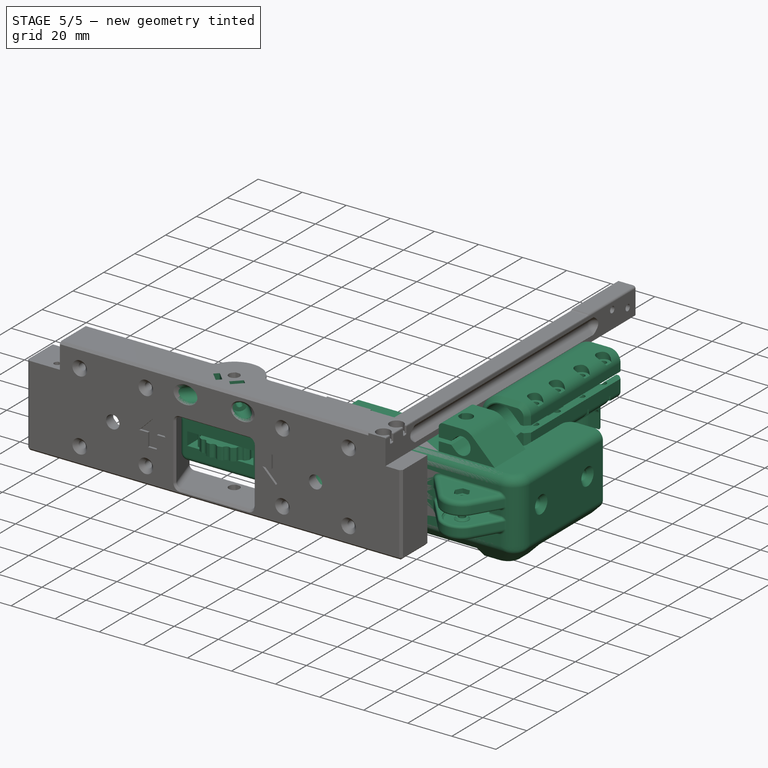
[diagram: stage 5 of 5 — iso view after this stage's code; geometry added in this stage tinted green]
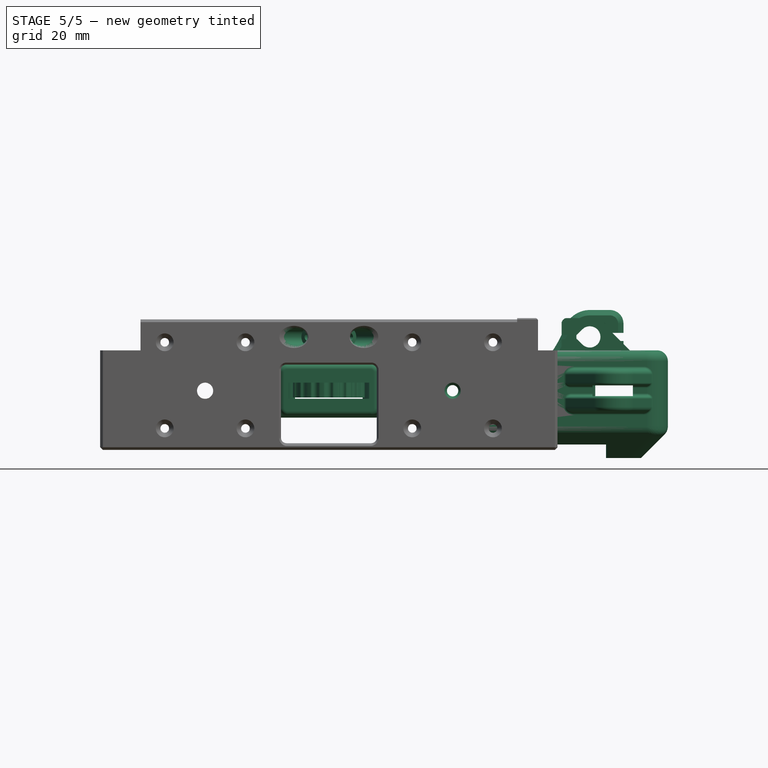
[diagram: stage 5 of 5 — front view after this stage's code; geometry added in this stage tinted green]
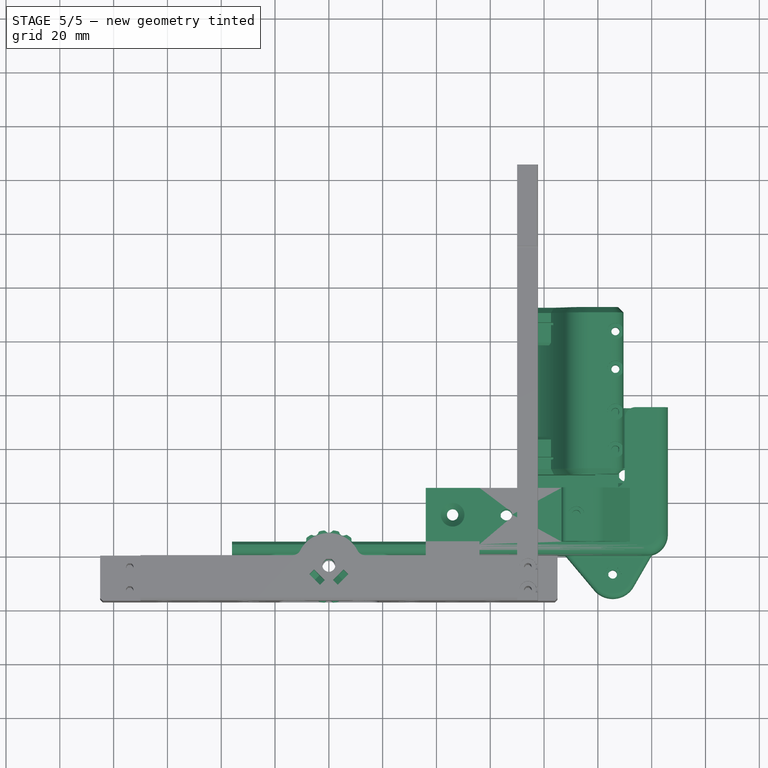
[diagram: stage 5 of 5 — top view after this stage's code; geometry added in this stage tinted green]
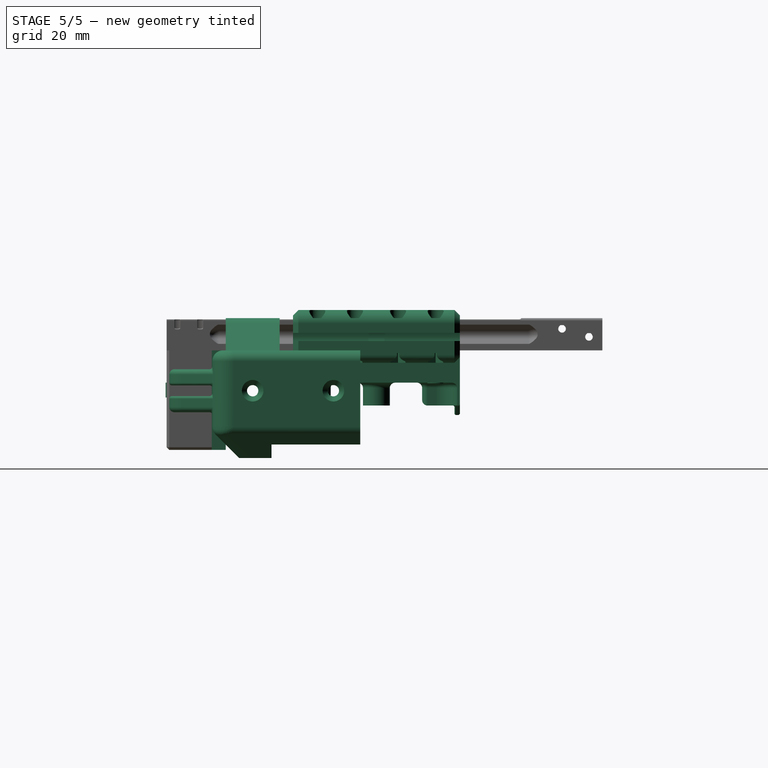
[diagram: stage 5 of 5 — right view after this stage's code; geometry added in this stage tinted green]
FEATURE [Spreadsheet::Sheet] Spreadsheet  label="pars"
  cells = A1=Bolts and Nuts; B1=Value; D1=Components; E1=Value; A2=Thread Tight Tolerance (Radius, ratio); B2(ThrTighRatio)=0.96; D2=Tight Cilinder Tolerances (Radius, mm); E2(CilTight)=0.1; A3=Thread Tight Tolerance (Radius, mm); B3(ThrTightmm)=0.1; D3=Loose Cilinder Tolerances (Radius, mm); E3(CilLoose)=0.1; A5=Nut Slot Width Clearance (mm); B5(NutWidthClearmm)=0.1; A6=Nut Slot Thickess Clearance (mm); B6(NutThickClearmm)=0.1; A13=Particular parameters; B13=Value; A14=Front Clearance; B14(FrontClear)=0.2; A15=Threaded Rod End Clearance; B15(ThrRodEndClear)=0.2; A16=Ball Shape Tolerance; B16(BallShapeTol)=-0.054; A17=Rail Length; B17(RailLen)=38; A18=Guide Clearance; B18(GuideClear)=0.4; A19=Guides Separation; B19(GuideSep)=46; A20=Guide Bolts Separation; B20(GBoltSep)=15; A21=Guide Tightness; B21(GuideTight)=0.33
FEATURE [Part::Feature] Fillet002  label="T slot extrusion 20x20x200.001"
  Placement = pos=(-100,5,-10) rot=(0,-1,0;1.5708rad)
  shape: bbox 200 x 20 x 20 mm, 51 faces (baked)
FEATURE [Part::FeaturePython] FocusWheelHolder_01  label="FocusWheelHolder"  # a2plus imported part (geometry in sourceFile) (typed FeaturePython)
  Placement = pos=(0,5,0) rot=(0,0,1;0rad)
  fixedPosition = true
  sourceFile = ./FocusWheelHolder.fcstd
  timeLastImport = 1.52061e+09
  updateColors = true
FEATURE [Part::FeaturePython] FrontCorner_01  label="FrontCorner"  # a2plus imported part (geometry in sourceFile) (typed FeaturePython)
  Placement = pos=(110,-7,0) rot=(0,0,1;0rad)
  fixedPosition = false
  sourceFile = ./../../MainFrame/FrontCorner.fcstd
  timeLastImport = 1.52061e+09
  updateColors = true
FEATURE [Part::FeaturePython] FrontGuide_01  label="FrontGuide"  # a2plus imported part (geometry in sourceFile) (typed FeaturePython)
  Placement = pos=(46,5,0) rot=(0,0,1;0rad)
  fixedPosition = false
  sourceFile = ./FrontGuide.fcstd
  timeLastImport = 1.52061e+09
  updateColors = true
FEATURE [Part::FeaturePython] RYCarriage_step1_01  label="RYCarriage"  # a2plus imported part (geometry in sourceFile) (typed FeaturePython)
  Placement = pos=(70,61,0) rot=(0,0,1;0rad)
  fixedPosition = false
  sourceFile = ./../../../Step/Printed/Axes/YCarriage/RYCarriage.step
  timeLastImport = 1.5206e+09
  updateColors = true
FEATURE [Part::FeaturePython] FocusWheel_01  label="FocusWheel"  # a2plus imported part (geometry in sourceFile) (typed FeaturePython)
  Placement = pos=(0,-4,-2.5) rot=(0,0,1;0rad)
  fixedPosition = false
  sourceFile = ./FocusWheel.fcstd
  timeLastImport = 1.52061e+09
  updateColors = true
FEATURE [App::DocumentObjectGroup] Group001  label="Main_src"
  Group = -> [Pad001,Draft,Cut,Chamfer,Cut001,Cut003,Chamfer001,Cut015]
FEATURE [Part::FeaturePython] Clone016  label="Clone of GuideBoltCut"  # Draft clone (typed FeaturePython)
  Objects = -> [Cut015]
  Scale = (1,1,1)
FEATURE [Part::MultiCommon] Common  label="FrontCraneGuide"
  Shapes = -> [Pad004,Clone016]
FEATURE [Sketcher::SketchObject] Sketch023  label="DIN912M3BoltSlot"
  expr: Constraints[16] = pars.CilLoose + 3
  expr: Constraints[14] = 1.5 - pars.CilTight
  sketch-geometry (6):
    g0: LineSegment StartX=0 StartY=13 StartZ=0 EndX=3.1 EndY=13 EndZ=0
    g1: LineSegment StartX=3.1 StartY=13 StartZ=0 EndX=3.1 EndY=0 EndZ=0
    g2: LineSegment StartX=3.1 StartY=0 StartZ=0 EndX=1.4 EndY=0 EndZ=0
    g3: LineSegment StartX=1.4 StartY=0 StartZ=0 EndX=1.4 EndY=-13 EndZ=0
    g4: LineSegment StartX=1.4 StartY=-13 StartZ=0 EndX=0 EndY=-13 EndZ=0
    g5: LineSegment StartX=0 StartY=-13 StartZ=0 EndX=0 EndY=13 EndZ=0
  constraints (18):
    c: Coincident(g0,g1)
    c: Coincident(g1,g2)
    c: Coincident(g2,g3)
    c: Coincident(g3,g4)
    c: Coincident(g4,g5)
    c: Coincident(g5,g0)
    c: Vertical(g5)
    c: Vertical(g3)
    c: Vertical(g1)
    c: Horizontal(g0)
    c: Horizontal(g2)
    c: Horizontal(g4)
    c: PointOnObject(g2,g-1)
    c: PointOnObject(g0,g-2)
    c: DistanceX(g4,g4) = 1.4
    c: DistanceY(g3,g3) = 13
    c: DistanceX(g0,g0) = 3.1
    c: DistanceY(g1,g1) = 13
FEATURE [PartDesign::Revolution] Revolution  label="DIN912M3BoltSlot001"
  Angle = 360
  Axis = (0,1,0)
  Base = (0,0,0)
  ReferenceAxis = -> Sketch023 [V_Axis]
  Reversed = true
  Sketch = -> Sketch023
FEATURE [App::DocumentObjectGroup] Group002  label="Component_src"
  Group = -> [Revolution001,Pad002,Pad003,Pad005,Pad006,Pad007,Pad008,Revolution]
FEATURE [Part::FeaturePython] Clone019  label="Clone of DIN912M3BoltSlot001"  # Draft clone (typed FeaturePython)
  Objects = -> [Revolution]
  Placement = pos=(-8,-12,20) rot=(0,0,1;2.35619rad)
  Scale = (1,1,1)
FEATURE [Part::FeaturePython] Clone020  label="Clone of DIN912M3BoltSlot002"  # Draft clone (typed FeaturePython)
  Objects = -> [Revolution]
  Placement = pos=(8,-12,20) rot=(0,0,1;3.92699rad)
  Scale = (1,1,1)
FEATURE [Part::FeaturePython] Clone021  label="Clone of DIN934M3Slot003"  # Draft clone (typed FeaturePython)
  Objects = -> [Pad005]
  Placement = pos=(3.5,-7.5,19) rot=(0.862856,0.357407,0.357407;1.71777rad)
  Scale = (1,1,1)
FEATURE [Part::FeaturePython] Clone022  label="Clone of DIN934M3Slot004"  # Draft clone (typed FeaturePython)
  Objects = -> [Pad005]
  Placement = pos=(-3.5,-7.5,19) rot=(0.862856,-0.357407,-0.357407;1.71777rad)
  Scale = (1,1,1)
FEATURE [Part::Cut] Cut018
  Base = -> Cut017
  Tool = -> Clone021
FEATURE [Part::Cut] Cut019  label="ThrNutsCut"
  Base = -> Cut018
  Tool = -> Clone022
FEATURE [Part::Cut] Cut020
  Base = -> Cut019
  Tool = -> Clone019
FEATURE [Part::Cut] Cut021  label="ThrRodBolts"
  Base = -> Cut020
  Tool = -> Clone020
FEATURE [Part::Chamfer] Chamfer002  label="FrontChamfer  "
  Base = -> Cut021
  Edges = 2 edges r=1: [Edge355,Edge356]
FEATURE [App::DocumentObjectGroup] Group005  label="Carriage_src"
  Group = -> [Cut016,refine002,Pad009,refine003,Fillet005,Pocket002,Cut021,Chamfer002]
FEATURE [Part::FeaturePython] Clone023  label="FrontCrane"  # Draft clone (typed FeaturePython)
  Objects = -> [Chamfer002]
  Scale = (1,1,1)
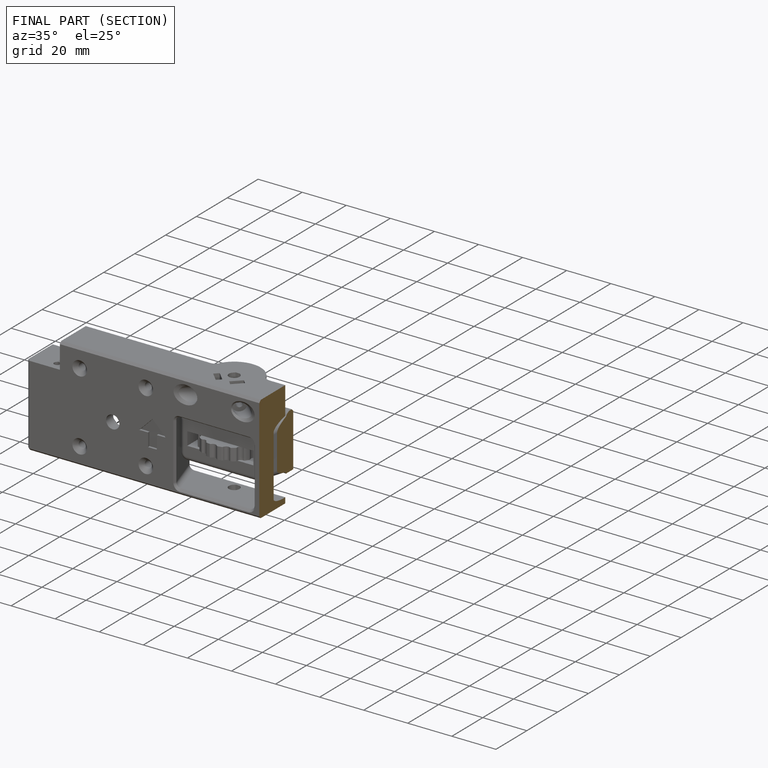
[diagram: finished part — half-section view (interior)]
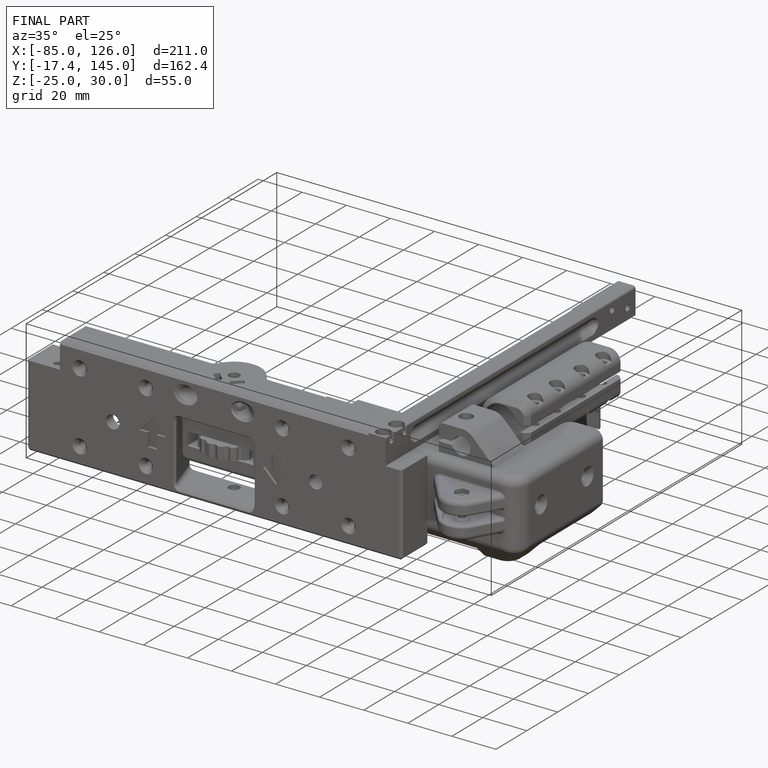
[diagram: finished part — iso view with bounding-box wireframe]
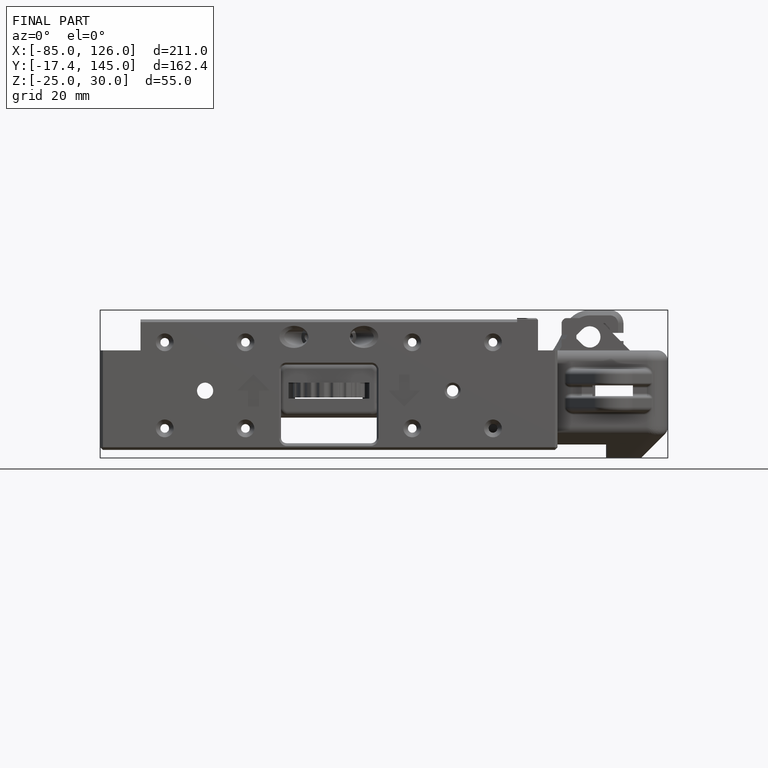
[diagram: finished part — front view with bounding-box wireframe]
